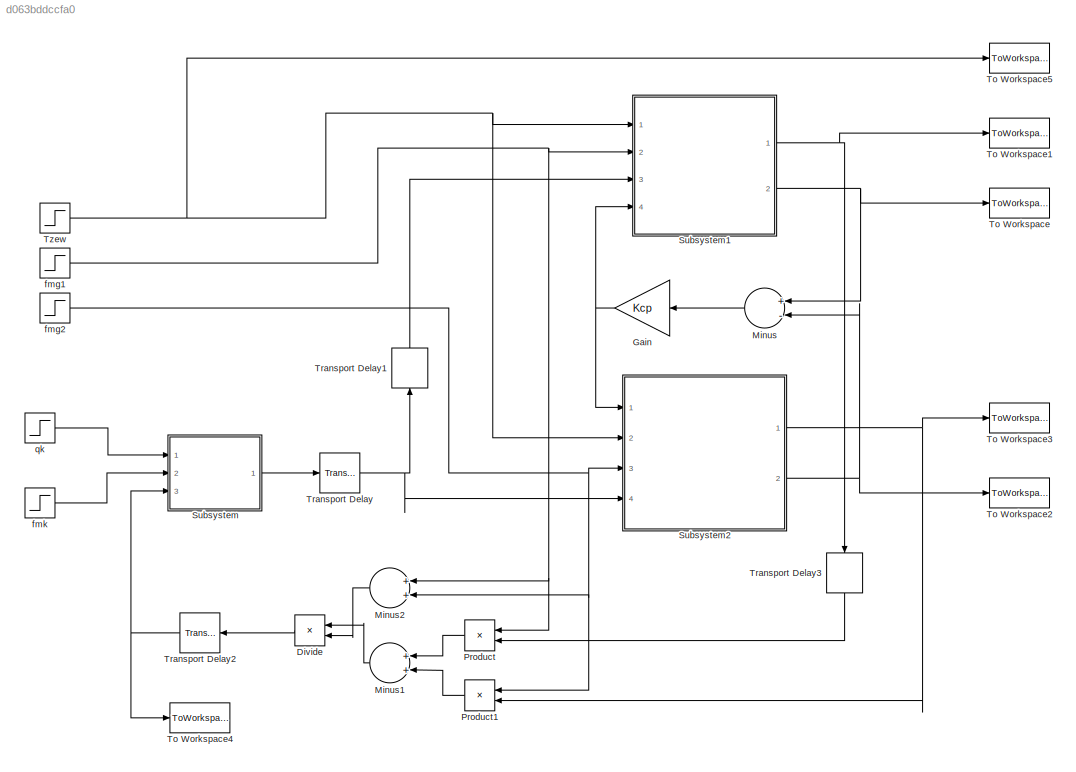
MODEL slx_d063bddccfa0
KIND model
CONFIG AbsTol = auto
CONFIG EnableMultiTasking = off
CONFIG FixedStep = auto
CONFIG MaxStep = auto
CONFIG MinStep = auto
CONFIG RelTol = 1e-3
CONFIG SampleTimeConstraint = Unconstrained
CONFIG Solver = VariableStepAuto
CONFIG SolverName = VariableStepAuto
CONFIG StartTime = 0.0
CONFIG StopTime = TS
BLOCK [Product] Divide
  InputSameDT = off
  Inputs = */
  OutDataTypeStr = Inherit: Inherit via internal rule
  Ports = [2, 1]
  RndMeth = Floor
  SaturateOnIntegerOverflow = off
BLOCK [Gain] Gain
  Gain = Kcp
  OutDataTypeStr = Inherit: Inherit via internal rule
  ParamDataTypeStr = Inherit: Inherit via internal rule
  SaturateOnIntegerOverflow = off
BLOCK [Sum] Minus
  InputSameDT = off
  Inputs = +-
  OutDataTypeStr = Inherit: Inherit via internal rule
  Ports = [2, 1]
  SaturateOnIntegerOverflow = off
BLOCK [Sum] Minus1
  InputSameDT = off
  OutDataTypeStr = Inherit: Inherit via internal rule
  Ports = [2, 1]
  SaturateOnIntegerOverflow = off
BLOCK [Sum] Minus2
  InputSameDT = off
  OutDataTypeStr = Inherit: Inherit via internal rule
  Ports = [2, 1]
  SaturateOnIntegerOverflow = off
BLOCK [Product] Product
  InputSameDT = off
  OutDataTypeStr = Inherit: Inherit via internal rule
  Ports = [2, 1]
  RndMeth = Floor
  SaturateOnIntegerOverflow = off
BLOCK [Product] Product1
  InputSameDT = off
  OutDataTypeStr = Inherit: Inherit via internal rule
  Ports = [2, 1]
  RndMeth = Floor
  SaturateOnIntegerOverflow = off
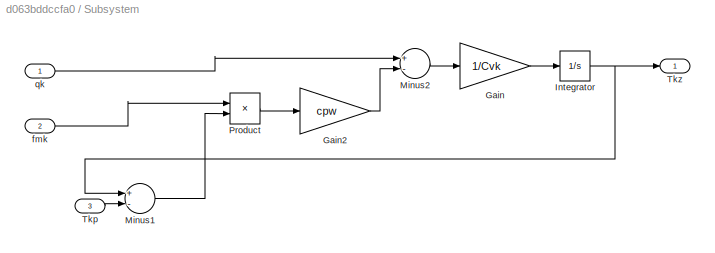
BLOCK [SubSystem] Subsystem
  Ports = [3, 1]
  RequestExecContextInheritance = off
BLOCK [Gain] Subsystem/Gain
  Gain = 1/Cvk
  OutDataTypeStr = Inherit: Inherit via internal rule
  ParamDataTypeStr = Inherit: Inherit via internal rule
  SaturateOnIntegerOverflow = off
BLOCK [Gain] Subsystem/Gain2
  Gain = cpw
  OutDataTypeStr = Inherit: Inherit via internal rule
  ParamDataTypeStr = Inherit: Inherit via internal rule
  SaturateOnIntegerOverflow = off
BLOCK [Integrator] Subsystem/Integrator
  InitialCondition = Tkz0
  Ports = [1, 1]
BLOCK [Sum] Subsystem/Minus1
  InputSameDT = off
  Inputs = +-
  OutDataTypeStr = Inherit: Inherit via internal rule
  Ports = [2, 1]
  SaturateOnIntegerOverflow = off
BLOCK [Sum] Subsystem/Minus2
  InputSameDT = off
  Inputs = +-
  OutDataTypeStr = Inherit: Inherit via internal rule
  Ports = [2, 1]
  SaturateOnIntegerOverflow = off
BLOCK [Product] Subsystem/Product
  InputSameDT = off
  OutDataTypeStr = Inherit: Inherit via internal rule
  Ports = [2, 1]
  RndMeth = Floor
  SaturateOnIntegerOverflow = off
BLOCK [Inport] Subsystem/Tkp
  IconDisplay = Port number
  Port = 3
BLOCK [Outport] Subsystem/Tkz
  IconDisplay = Port number
BLOCK [Inport] Subsystem/fmk
  IconDisplay = Port number
  Port = 2
BLOCK [Inport] Subsystem/qk
  IconDisplay = Port number
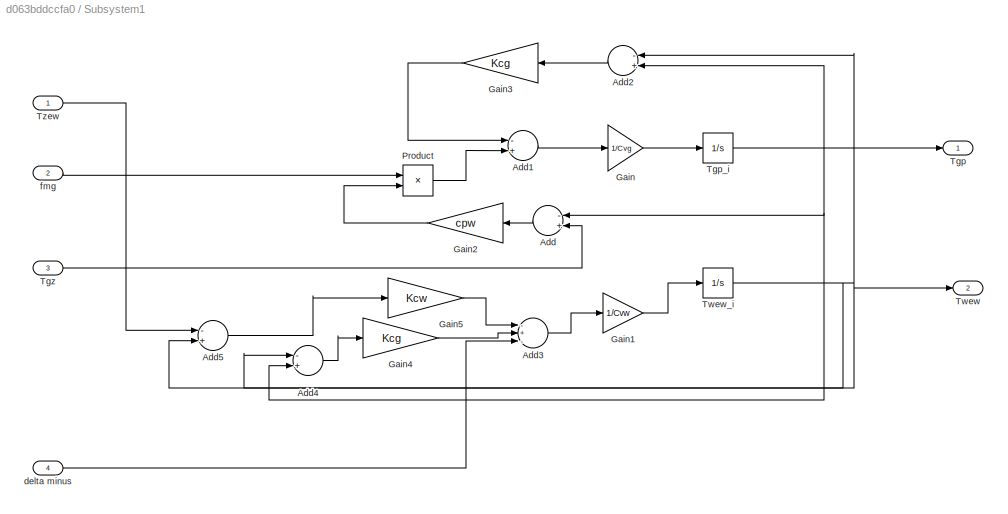
BLOCK [SubSystem] Subsystem1
  Ports = [4, 2]
  RequestExecContextInheritance = off
BLOCK [Sum] Subsystem1/Add
  InputSameDT = off
  Inputs = -+
  OutDataTypeStr = Inherit: Inherit via internal rule
  Ports = [2, 1]
  SaturateOnIntegerOverflow = off
BLOCK [Sum] Subsystem1/Add1
  InputSameDT = off
  Inputs = -+
  OutDataTypeStr = Inherit: Inherit via internal rule
  Ports = [2, 1]
  SaturateOnIntegerOverflow = off
BLOCK [Sum] Subsystem1/Add2
  InputSameDT = off
  Inputs = -+
  OutDataTypeStr = Inherit: Inherit via internal rule
  Ports = [2, 1]
  SaturateOnIntegerOverflow = off
BLOCK [Sum] Subsystem1/Add3
  InputSameDT = off
  Inputs = -+-
  OutDataTypeStr = Inherit: Inherit via internal rule
  Ports = [3, 1]
  SaturateOnIntegerOverflow = off
BLOCK [Sum] Subsystem1/Add4
  InputSameDT = off
  Inputs = -+
  OutDataTypeStr = Inherit: Inherit via internal rule
  Ports = [2, 1]
  SaturateOnIntegerOverflow = off
BLOCK [Sum] Subsystem1/Add5
  InputSameDT = off
  Inputs = -+
  OutDataTypeStr = Inherit: Inherit via internal rule
  Ports = [2, 1]
  SaturateOnIntegerOverflow = off
BLOCK [Gain] Subsystem1/Gain
  Gain = 1/Cvg
  OutDataTypeStr = Inherit: Inherit via internal rule
  ParamDataTypeStr = Inherit: Inherit via internal rule
  SaturateOnIntegerOverflow = off
BLOCK [Gain] Subsystem1/Gain1
  Gain = 1/Cvw
  OutDataTypeStr = Inherit: Inherit via internal rule
  ParamDataTypeStr = Inherit: Inherit via internal rule
  SaturateOnIntegerOverflow = off
BLOCK [Gain] Subsystem1/Gain2
  Gain = cpw
  OutDataTypeStr = Inherit: Inherit via internal rule
  ParamDataTypeStr = Inherit: Inherit via internal rule
  SaturateOnIntegerOverflow = off
BLOCK [Gain] Subsystem1/Gain3
  Gain = Kcg
  OutDataTypeStr = Inherit: Inherit via internal rule
  ParamDataTypeStr = Inherit: Inherit via internal rule
  SaturateOnIntegerOverflow = off
BLOCK [Gain] Subsystem1/Gain4
  Gain = Kcg
  OutDataTypeStr = Inherit: Inherit via internal rule
  ParamDataTypeStr = Inherit: Inherit via internal rule
  SaturateOnIntegerOverflow = off
BLOCK [Gain] Subsystem1/Gain5
  Gain = Kcw
  OutDataTypeStr = Inherit: Inherit via internal rule
  ParamDataTypeStr = Inherit: Inherit via internal rule
  SaturateOnIntegerOverflow = off
BLOCK [Product] Subsystem1/Product
  InputSameDT = off
  OutDataTypeStr = Inherit: Inherit via internal rule
  Ports = [2, 1]
  RndMeth = Floor
  SaturateOnIntegerOverflow = off
BLOCK [Outport] Subsystem1/Tgp
  IconDisplay = Port number
BLOCK [Integrator] Subsystem1/Tgp_i
  InitialCondition = Tgp0
  Ports = [1, 1]
BLOCK [Inport] Subsystem1/Tgz
  IconDisplay = Port number
  Port = 3
BLOCK [Outport] Subsystem1/Twew 
  IconDisplay = Port number
  Port = 2
BLOCK [Integrator] Subsystem1/Twew_i
  InitialCondition = Twew0
  Ports = [1, 1]
BLOCK [Inport] Subsystem1/Tzew
  IconDisplay = Port number
BLOCK [Inport] Subsystem1/delta minus
  IconDisplay = Port number
  Port = 4
BLOCK [Inport] Subsystem1/fmg
  IconDisplay = Port number
  Port = 2
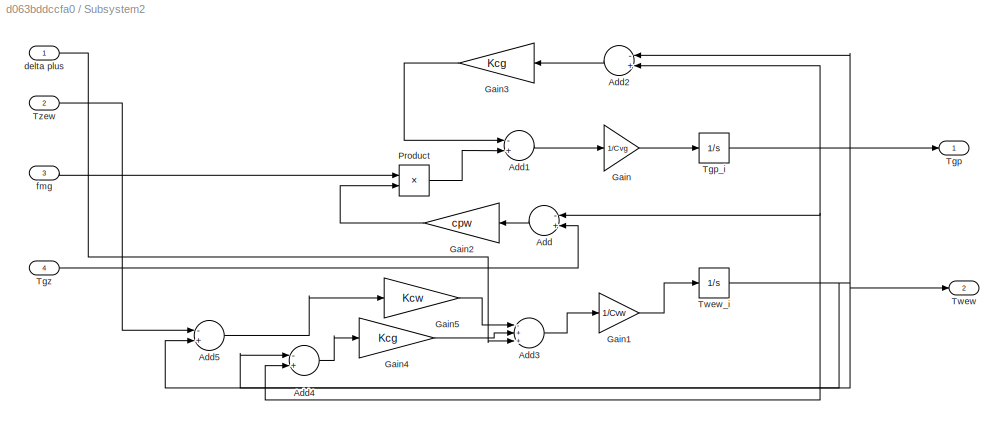
BLOCK [SubSystem] Subsystem2
  Ports = [4, 2]
  RequestExecContextInheritance = off
BLOCK [Sum] Subsystem2/Add
  InputSameDT = off
  Inputs = -+
  OutDataTypeStr = Inherit: Inherit via internal rule
  Ports = [2, 1]
  SaturateOnIntegerOverflow = off
BLOCK [Sum] Subsystem2/Add1
  InputSameDT = off
  Inputs = -+
  OutDataTypeStr = Inherit: Inherit via internal rule
  Ports = [2, 1]
  SaturateOnIntegerOverflow = off
BLOCK [Sum] Subsystem2/Add2
  InputSameDT = off
  Inputs = -+
  OutDataTypeStr = Inherit: Inherit via internal rule
  Ports = [2, 1]
  SaturateOnIntegerOverflow = off
BLOCK [Sum] Subsystem2/Add3
  InputSameDT = off
  Inputs = -++
  OutDataTypeStr = Inherit: Inherit via internal rule
  Ports = [3, 1]
  SaturateOnIntegerOverflow = off
BLOCK [Sum] Subsystem2/Add4
  InputSameDT = off
  Inputs = -+
  OutDataTypeStr = Inherit: Inherit via internal rule
  Ports = [2, 1]
  SaturateOnIntegerOverflow = off
BLOCK [Sum] Subsystem2/Add5
  InputSameDT = off
  Inputs = -+
  OutDataTypeStr = Inherit: Inherit via internal rule
  Ports = [2, 1]
  SaturateOnIntegerOverflow = off
BLOCK [Gain] Subsystem2/Gain
  Gain = 1/Cvg
  OutDataTypeStr = Inherit: Inherit via internal rule
  ParamDataTypeStr = Inherit: Inherit via internal rule
  SaturateOnIntegerOverflow = off
BLOCK [Gain] Subsystem2/Gain1
  Gain = 1/Cvw
  OutDataTypeStr = Inherit: Inherit via internal rule
  ParamDataTypeStr = Inherit: Inherit via internal rule
  SaturateOnIntegerOverflow = off
BLOCK [Gain] Subsystem2/Gain2
  Gain = cpw
  OutDataTypeStr = Inherit: Inherit via internal rule
  ParamDataTypeStr = Inherit: Inherit via internal rule
  SaturateOnIntegerOverflow = off
BLOCK [Gain] Subsystem2/Gain3
  Gain = Kcg
  OutDataTypeStr = Inherit: Inherit via internal rule
  ParamDataTypeStr = Inherit: Inherit via internal rule
  SaturateOnIntegerOverflow = off
BLOCK [Gain] Subsystem2/Gain4
  Gain = Kcg
  OutDataTypeStr = Inherit: Inherit via internal rule
  ParamDataTypeStr = Inherit: Inherit via internal rule
  SaturateOnIntegerOverflow = off
BLOCK [Gain] Subsystem2/Gain5
  Gain = Kcw
  OutDataTypeStr = Inherit: Inherit via internal rule
  ParamDataTypeStr = Inherit: Inherit via internal rule
  SaturateOnIntegerOverflow = off
BLOCK [Product] Subsystem2/Product
  InputSameDT = off
  OutDataTypeStr = Inherit: Inherit via internal rule
  Ports = [2, 1]
  RndMeth = Floor
  SaturateOnIntegerOverflow = off
BLOCK [Outport] Subsystem2/Tgp
  IconDisplay = Port number
BLOCK [Integrator] Subsystem2/Tgp_i
  InitialCondition = Tgp0
  Ports = [1, 1]
BLOCK [Inport] Subsystem2/Tgz
  IconDisplay = Port number
  Port = 4
BLOCK [Outport] Subsystem2/Twew
  IconDisplay = Port number
  Port = 2
BLOCK [Integrator] Subsystem2/Twew_i
  InitialCondition = Twew0
  Ports = [1, 1]
BLOCK [Inport] Subsystem2/Tzew
  IconDisplay = Port number
  Port = 2
BLOCK [Inport] Subsystem2/delta plus
  IconDisplay = Port number
BLOCK [Inport] Subsystem2/fmg
  IconDisplay = Port number
  Port = 3
BLOCK [ToWorkspace] To Workspace
  FixptAsFi = on
  MaxDataPoints = inf
  Ports = [1]
  SampleTime = -1
  VariableName = Twew1
BLOCK [ToWorkspace] To Workspace1
  FixptAsFi = on
  MaxDataPoints = inf
  Ports = [1]
  SampleTime = -1
  VariableName = Tgp1
BLOCK [ToWorkspace] To Workspace2
  FixptAsFi = on
  MaxDataPoints = inf
  Ports = [1]
  SampleTime = -1
  VariableName = Twew2
BLOCK [ToWorkspace] To Workspace3
  FixptAsFi = on
  MaxDataPoints = inf
  Ports = [1]
  SampleTime = -1
  VariableName = Tgp2
BLOCK [ToWorkspace] To Workspace4
  FixptAsFi = on
  MaxDataPoints = inf
  Ports = [1]
  SampleTime = -1
  VariableName = Tkp
BLOCK [ToWorkspace] To Workspace5
  FixptAsFi = on
  MaxDataPoints = inf
  Ports = [1]
  SampleTime = -1
  VariableName = Tzew
BLOCK [TransportDelay] Transport Delay
  DelayTime = delta_t
  InitialOutput = Tkz0
  Ports = [1, 1]
BLOCK [TransportDelay] Transport Delay1
  DelayTime = delta_t
  InitialOutput = Tkz0
  Ports = [1, 1]
BLOCK [TransportDelay] Transport Delay2
  DelayTime = delta_t
  InitialOutput = Tkp0
  Ports = [1, 1]
BLOCK [TransportDelay] Transport Delay3
  DelayTime = delta_t
  InitialOutput = Tgp10
  Ports = [1, 1]
BLOCK [Step] Tzew
  After = Tzew0 +dT
  Before = Tzew0
  SampleTime = 0
  Time = t0
BLOCK [Step] fmg1
  After = f10 +df1
  Before = f10
  SampleTime = 0
  Time = t0
BLOCK [Step] fmg2
  After = f20+df2
  Before = f20
  SampleTime = 0
  Time = t0
BLOCK [Step] fmk
  SampleTime = 0
BLOCK [Step] qk
  SampleTime = 0
LINE Divide:1 -> Transport Delay2:1
NET Gain:1 -> Subsystem1:4, Subsystem2:1
LINE Minus1:1 -> Divide:1
LINE Minus2:1 -> Divide:2
LINE Minus:1 -> Gain:1
LINE Product1:1 -> Minus1:2
LINE Product:1 -> Minus1:1
LINE Subsystem/Gain2:1 -> Subsystem/Minus2:2
LINE Subsystem/Gain:1 -> Subsystem/Integrator:1
NET Subsystem/Integrator:1 -> Subsystem/Minus1:1, Subsystem/Tkz:1
LINE Subsystem/Minus1:1 -> Subsystem/Product:2
LINE Subsystem/Minus2:1 -> Subsystem/Gain:1
LINE Subsystem/Product:1 -> Subsystem/Gain2:1
LINE Subsystem/Tkp:1 -> Subsystem/Minus1:2
LINE Subsystem/fmk:1 -> Subsystem/Product:1
LINE Subsystem/qk:1 -> Subsystem/Minus2:1
LINE Subsystem1/Add1:1 -> Subsystem1/Gain:1
LINE Subsystem1/Add2:1 -> Subsystem1/Gain3:1
LINE Subsystem1/Add3:1 -> Subsystem1/Gain1:1
LINE Subsystem1/Add4:1 -> Subsystem1/Gain4:1
LINE Subsystem1/Add5:1 -> Subsystem1/Gain5:1
LINE Subsystem1/Add:1 -> Subsystem1/Gain2:1
LINE Subsystem1/Gain1:1 -> Subsystem1/Twew_i:1
LINE Subsystem1/Gain2:1 -> Subsystem1/Product:2
LINE Subsystem1/Gain3:1 -> Subsystem1/Add1:1
LINE Subsystem1/Gain4:1 -> Subsystem1/Add3:2
LINE Subsystem1/Gain5:1 -> Subsystem1/Add3:1
LINE Subsystem1/Gain:1 -> Subsystem1/Tgp_i:1
LINE Subsystem1/Product:1 -> Subsystem1/Add1:2
NET Subsystem1/Tgp_i:1 -> Subsystem1/Add2:2, Subsystem1/Add4:2, Subsystem1/Add:1, Subsystem1/Tgp:1
LINE Subsystem1/Tgz:1 -> Subsystem1/Add:2
NET Subsystem1/Twew_i:1 -> Subsystem1/Add2:1, Subsystem1/Add4:1, Subsystem1/Add5:2, Subsystem1/Twew :1
LINE Subsystem1/Tzew:1 -> Subsystem1/Add5:1
LINE Subsystem1/delta minus:1 -> Subsystem1/Add3:3
LINE Subsystem1/fmg:1 -> Subsystem1/Product:1
NET Subsystem1:1 -> To Workspace1:1, Transport Delay3:1
NET Subsystem1:2 -> Minus:1, To Workspace:1
LINE Subsystem2/Add1:1 -> Subsystem2/Gain:1
LINE Subsystem2/Add2:1 -> Subsystem2/Gain3:1
LINE Subsystem2/Add3:1 -> Subsystem2/Gain1:1
LINE Subsystem2/Add4:1 -> Subsystem2/Gain4:1
LINE Subsystem2/Add5:1 -> Subsystem2/Gain5:1
LINE Subsystem2/Add:1 -> Subsystem2/Gain2:1
LINE Subsystem2/Gain1:1 -> Subsystem2/Twew_i:1
LINE Subsystem2/Gain2:1 -> Subsystem2/Product:2
LINE Subsystem2/Gain3:1 -> Subsystem2/Add1:1
LINE Subsystem2/Gain4:1 -> Subsystem2/Add3:2
LINE Subsystem2/Gain5:1 -> Subsystem2/Add3:1
LINE Subsystem2/Gain:1 -> Subsystem2/Tgp_i:1
LINE Subsystem2/Product:1 -> Subsystem2/Add1:2
NET Subsystem2/Tgp_i:1 -> Subsystem2/Add2:2, Subsystem2/Add4:2, Subsystem2/Add:1, Subsystem2/Tgp:1
LINE Subsystem2/Tgz:1 -> Subsystem2/Add:2
NET Subsystem2/Twew_i:1 -> Subsystem2/Add2:1, Subsystem2/Add4:1, Subsystem2/Add5:2, Subsystem2/Twew:1
LINE Subsystem2/Tzew:1 -> Subsystem2/Add5:1
LINE Subsystem2/delta plus:1 -> Subsystem2/Add3:3
LINE Subsystem2/fmg:1 -> Subsystem2/Product:1
NET Subsystem2:1 -> Product1:2, To Workspace3:1
NET Subsystem2:2 -> Minus:2, To Workspace2:1
LINE Subsystem:1 -> Transport Delay:1
LINE Transport Delay1:1 -> Subsystem1:3
NET Transport Delay2:1 -> Subsystem:3, To Workspace4:1
LINE Transport Delay3:1 -> Product:2
NET Transport Delay:1 -> Subsystem2:4, Transport Delay1:1
NET Tzew:1 -> Subsystem1:1, Subsystem2:2, To Workspace5:1
NET fmg1:1 -> Minus2:1, Product:1, Subsystem1:2
NET fmg2:1 -> Minus2:2, Product1:1, Subsystem2:3
LINE fmk:1 -> Subsystem:2
LINE qk:1 -> Subsystem:1
note: NET lines group one-source signal fan-out (src -> all destinations, sorted); 1:1 wires keep LINE
